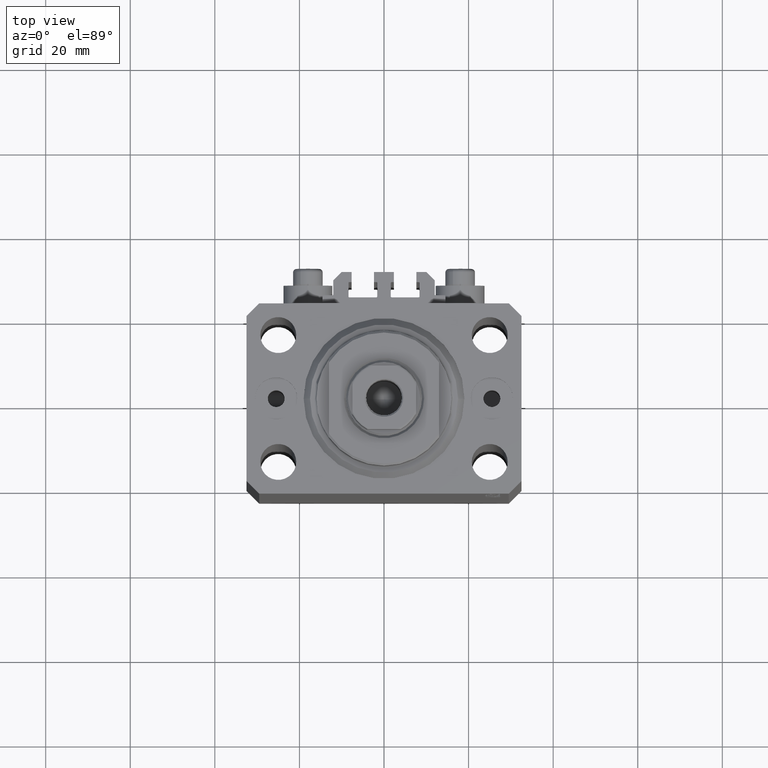
[diagram: clean part render]
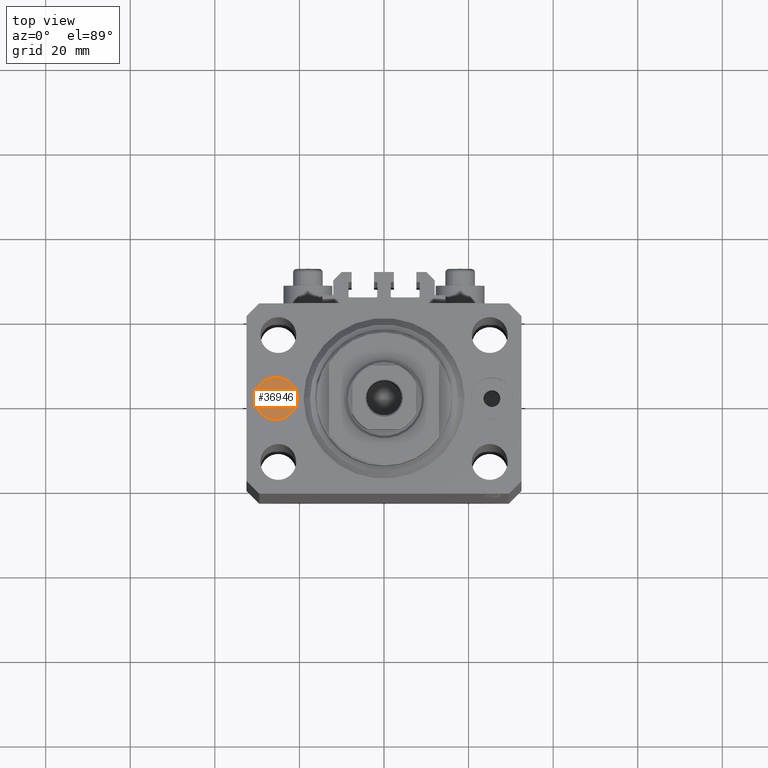
[diagram: same view with one face highlighted and labeled with its STEP entity id]
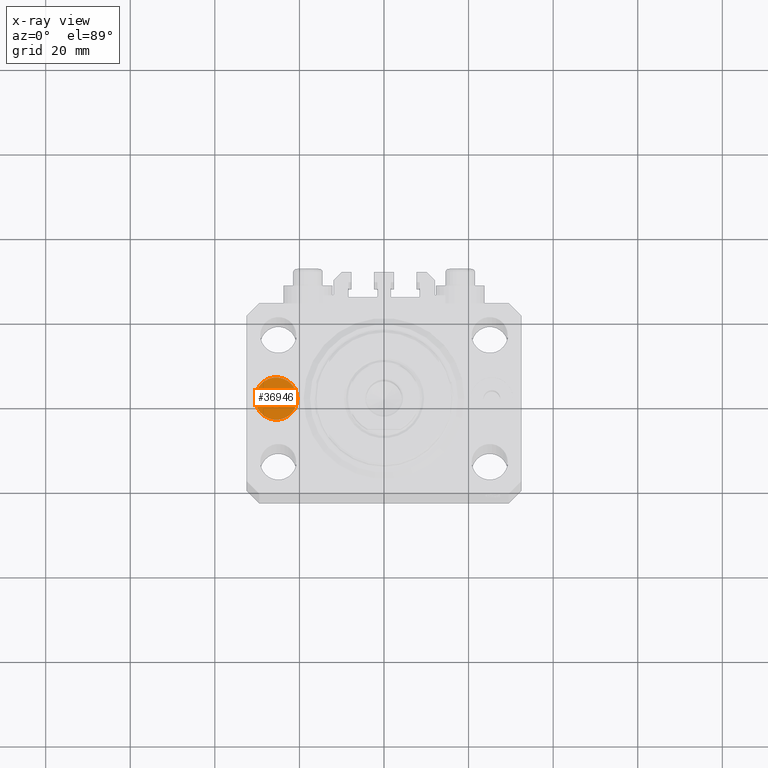
[diagram: x-ray of the same camera — body ghosted, the highlighted face saturated]
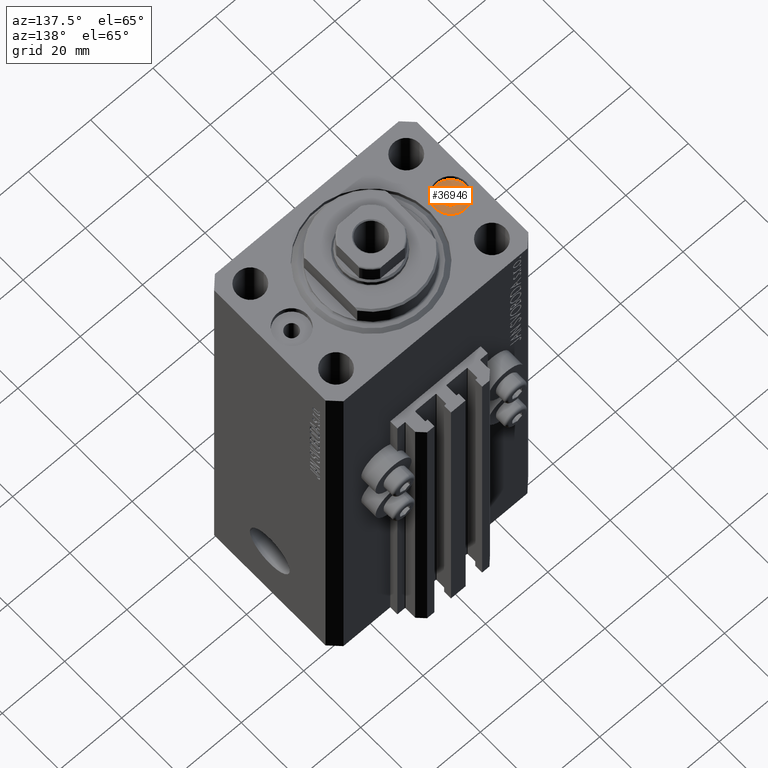
[diagram: same view with one face highlighted and labeled with its STEP entity id]
A machine part, top view. The second image highlights one B-rep face of the part: STEP entity #36946.
The next image is the same camera in x-ray: the body ghosted, the highlighted face saturated — about 0% of this face is hidden behind the body in this view.
A second angle (auxiliary view) of the same face is appended — the face is thin or edge-on in the first view.
In plain terms, the highlighted planar face has unit normal (0, 0, 1).
Its self-contained STEP definition (entity closure, byte-faithful):
#520 = DIRECTION ( 'NONE',  ( 1.000000000000000000, 0.000000000000000000, 0.000000000000000000 ) ) ;
#1459 = AXIS2_PLACEMENT_3D ( 'NONE', #44124, #8291, #15234 ) ;
#2234 = AXIS2_PLACEMENT_3D ( 'NONE', #9658, #46883, #20871 ) ;
#2369 = EDGE_LOOP ( 'NONE', ( #31581, #41941 ) ) ;
#6023 = CIRCLE ( 'NONE', #2234, 5.000000000003342215 ) ;
#8291 = DIRECTION ( 'NONE',  ( 0.000000000000000000, 0.000000000000000000, 1.000000000000000000 ) ) ;
#9658 = CARTESIAN_POINT ( 'NONE',  ( -25.50000000000000000, 0.000000000000000000, -1.899999999999999911 ) ) ;
#9963 = ORIENTED_EDGE ( 'NONE', *, *, #40457, .F. ) ;
#11036 = DIRECTION ( 'NONE',  ( 1.000000000000000000, 0.000000000000000000, 0.000000000000000000 ) ) ;
#12216 = AXIS2_PLACEMENT_3D ( 'NONE', #17747, #39932, #11036 ) ;
#14861 = EDGE_CURVE ( 'NONE', #26255, #18108, #34797, .T. ) ;
#15234 = DIRECTION ( 'NONE',  ( 1.000000000000000000, 0.000000000000000000, -0.000000000000000000 ) ) ;
#16466 = AXIS2_PLACEMENT_3D ( 'NONE', #18448, #47096, #520 ) ;
#17747 = CARTESIAN_POINT ( 'NONE',  ( -25.50000000000000000, 0.000000000000000000, -1.899999999999999911 ) ) ;
#18108 = VERTEX_POINT ( 'NONE', #21483 ) ;
#18448 = CARTESIAN_POINT ( 'NONE',  ( -25.50000000000000000, 0.000000000000000000, -1.899999999999999911 ) ) ;
#18805 = PLANE ( 'NONE',  #1459 ) ;
#19652 = VERTEX_POINT ( 'NONE', #43562 ) ;
#20871 = DIRECTION ( 'NONE',  ( 1.000000000000000000, 0.000000000000000000, 0.000000000000000000 ) ) ;
#21483 = CARTESIAN_POINT ( 'NONE',  ( -20.49999999999665690, 0.000000000000000000, -1.899999999999999911 ) ) ;
#22541 = CIRCLE ( 'NONE', #16466, 2.000000000003339551 ) ;
#25539 = VERTEX_POINT ( 'NONE', #25793 ) ;
#25793 = CARTESIAN_POINT ( 'NONE',  ( -23.49999999999666045, 0.000000000000000000, -1.899999999999999911 ) ) ;
#26189 = FACE_OUTER_BOUND ( 'NONE', #2369, .T. ) ;
#26255 = VERTEX_POINT ( 'NONE', #27564 ) ;
#26469 = CARTESIAN_POINT ( 'NONE',  ( -25.50000000000000000, 0.000000000000000000, -1.899999999999999911 ) ) ;
#26828 = EDGE_CURVE ( 'NONE', #25539, #19652, #22541, .T. ) ;
#27564 = CARTESIAN_POINT ( 'NONE',  ( -30.50000000000333955, 6.123233995740857512E-16, -1.899999999999999911 ) ) ;
#28479 = DIRECTION ( 'NONE',  ( 1.000000000000000000, 0.000000000000000000, 0.000000000000000000 ) ) ;
#31581 = ORIENTED_EDGE ( 'NONE', *, *, #32101, .T. ) ;
#32101 = EDGE_CURVE ( 'NONE', #18108, #26255, #6023, .T. ) ;
#32485 = AXIS2_PLACEMENT_3D ( 'NONE', #26469, #41040, #28479 ) ;
#32778 = CIRCLE ( 'NONE', #12216, 2.000000000003339551 ) ;
#33102 = FACE_BOUND ( 'NONE', #38162, .T. ) ;
#34797 = CIRCLE ( 'NONE', #32485, 5.000000000003342215 ) ;
#36946 = ADVANCED_FACE ( 'NONE', ( #33102, #26189 ), #18805, .T. ) ;
#38162 = EDGE_LOOP ( 'NONE', ( #40761, #9963 ) ) ;
#39932 = DIRECTION ( 'NONE',  ( 0.000000000000000000, 0.000000000000000000, 1.000000000000000000 ) ) ;
#40457 = EDGE_CURVE ( 'NONE', #19652, #25539, #32778, .T. ) ;
#40761 = ORIENTED_EDGE ( 'NONE', *, *, #26828, .F. ) ;
#41040 = DIRECTION ( 'NONE',  ( 0.000000000000000000, 0.000000000000000000, 1.000000000000000000 ) ) ;
#41941 = ORIENTED_EDGE ( 'NONE', *, *, #14861, .T. ) ;
#43562 = CARTESIAN_POINT ( 'NONE',  ( -27.50000000000333600, 2.449293598298799123E-16, -1.899999999999999911 ) ) ;
#44124 = CARTESIAN_POINT ( 'NONE',  ( -25.50000000000000000, 0.000000000000000000, -1.899999999999999911 ) ) ;
#46883 = DIRECTION ( 'NONE',  ( 0.000000000000000000, 0.000000000000000000, 1.000000000000000000 ) ) ;
#47096 = DIRECTION ( 'NONE',  ( 0.000000000000000000, 0.000000000000000000, 1.000000000000000000 ) ) ;